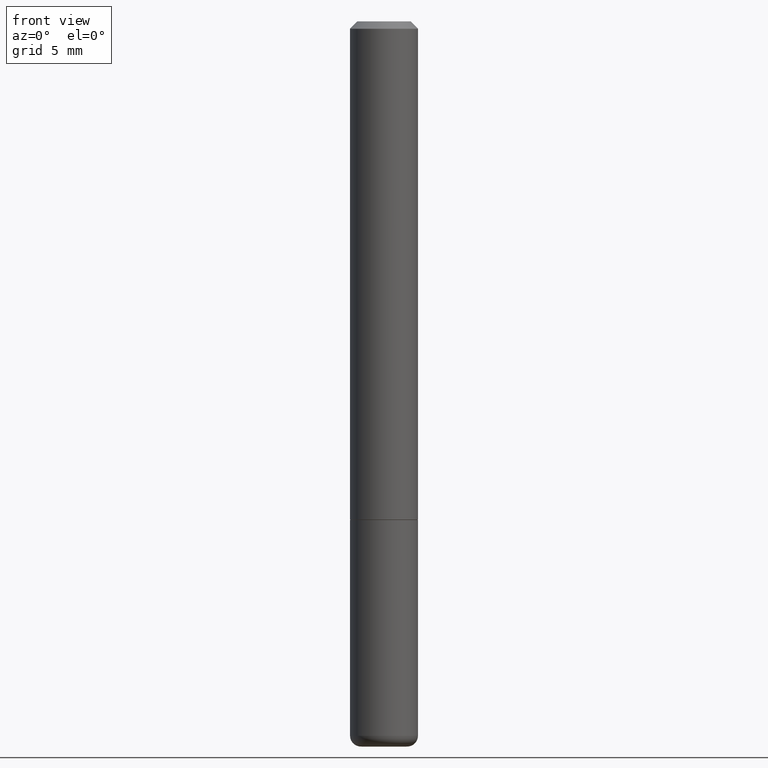
[diagram: clean part render]
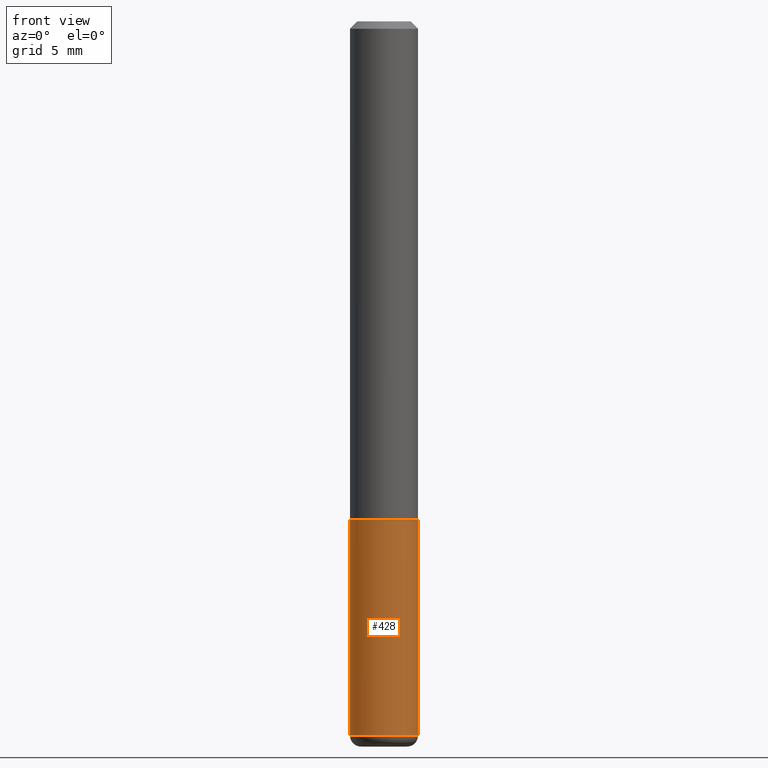
[diagram: same view with one face highlighted and labeled with its STEP entity id]
A machine part, front view. The second image highlights one B-rep face of the part: STEP entity #428.
In plain terms, the highlighted cylindrical surface (edge-blend (fillet) strip) has radius 2.3812 mm, axis along (-0, 0, 1).
Its self-contained STEP definition (entity closure, byte-faithful):
#6 = CARTESIAN_POINT ( 'NONE',  ( 0.09375000000000001388, -5.455439591942412434E-15, -1.375000000000000000 ) ) ;
#10 = VERTEX_POINT ( 'NONE', #58 ) ;
#22 = CARTESIAN_POINT ( 'NONE',  ( -0.09374999999999991673, 6.661338147750933326E-16, -4.611501647113969791E-30 ) ) ;
#27 = ORIENTED_EDGE ( 'NONE', *, *, #48, .F. ) ;
#31 = CARTESIAN_POINT ( 'NONE',  ( -0.09375000000000001388, -5.173440498747517472E-15, -1.375000000000000000 ) ) ;
#48 = EDGE_CURVE ( 'NONE', #96, #250, #372, .T. ) ;
#58 = CARTESIAN_POINT ( 'NONE',  ( -0.09374999999999984734, -5.173440498747517472E-15, -1.970041113957363033 ) ) ;
#62 = EDGE_CURVE ( 'NONE', #10, #96, #339, .T. ) ;
#77 = FACE_OUTER_BOUND ( 'NONE', #162, .T. ) ;
#78 = DIRECTION ( 'NONE',  ( -2.445468806185136877E-29, 3.491481338843145188E-15, 1.000000000000000000 ) ) ;
#81 = DIRECTION ( 'NONE',  ( 1.000000000000000000, -6.982962677686264344E-15, 0.000000000000000000 ) ) ;
#96 = VERTEX_POINT ( 'NONE', #31 ) ;
#115 = CARTESIAN_POINT ( 'NONE',  ( 0.09374999999999991673, -6.546527510330869125E-16, 4.571415727308685602E-30 ) ) ;
#118 = CIRCLE ( 'NONE', #233, 0.09374999999999984734 ) ;
#134 = AXIS2_PLACEMENT_3D ( 'NONE', #161, #195, #221 ) ;
#161 = CARTESIAN_POINT ( 'NONE',  ( 0.000000000000000000, 0.000000000000000000, 0.000000000000000000 ) ) ;
#162 = EDGE_LOOP ( 'NONE', ( #337, #248, #267, #27 ) ) ;
#174 = DIRECTION ( 'NONE',  ( -2.445468806185136877E-29, 3.491481338843145188E-15, 1.000000000000000000 ) ) ;
#180 = DIRECTION ( 'NONE',  ( -2.445468806185136597E-29, 3.491481338843145583E-15, 1.000000000000000000 ) ) ;
#185 = AXIS2_PLACEMENT_3D ( 'NONE', #436, #213, #207 ) ;
#195 = DIRECTION ( 'NONE',  ( -2.445468806185136597E-29, 3.491481338843145583E-15, 1.000000000000000000 ) ) ;
#207 = DIRECTION ( 'NONE',  ( 1.000000000000000000, -6.982962677686261189E-15, 0.000000000000000000 ) ) ;
#213 = DIRECTION ( 'NONE',  ( -2.445468806185136597E-29, 3.491481338843145583E-15, 1.000000000000000000 ) ) ;
#221 = DIRECTION ( 'NONE',  ( 1.000000000000000000, -6.982962677686266711E-15, 4.876176775795935793E-29 ) ) ;
#233 = AXIS2_PLACEMENT_3D ( 'NONE', #348, #180, #81 ) ;
#248 = ORIENTED_EDGE ( 'NONE', *, *, #429, .T. ) ;
#250 = VERTEX_POINT ( 'NONE', #6 ) ;
#263 = EDGE_CURVE ( 'NONE', #328, #250, #296, .T. ) ;
#267 = ORIENTED_EDGE ( 'NONE', *, *, #263, .T. ) ;
#270 = CARTESIAN_POINT ( 'NONE',  ( 0.09374999999999984734, -7.533014537168982211E-15, -1.970041113957363033 ) ) ;
#296 = LINE ( 'NONE', #115, #344 ) ;
#328 = VERTEX_POINT ( 'NONE', #270 ) ;
#337 = ORIENTED_EDGE ( 'NONE', *, *, #62, .F. ) ;
#339 = LINE ( 'NONE', #22, #352 ) ;
#344 = VECTOR ( 'NONE', #78, 39.37007874015748143 ) ;
#348 = CARTESIAN_POINT ( 'NONE',  ( 4.817674091084949095E-29, -6.878361786135895495E-15, -1.970041113957363033 ) ) ;
#352 = VECTOR ( 'NONE', #174, 39.37007874015748143 ) ;
#372 = CIRCLE ( 'NONE', #185, 0.09375000000000001388 ) ;
#386 = CYLINDRICAL_SURFACE ( 'NONE', #134, 0.09374999999999991673 ) ;
#428 = ADVANCED_FACE ( 'NONE', ( #77 ), #386, .T. ) ;
#429 = EDGE_CURVE ( 'NONE', #10, #328, #118, .T. ) ;
#436 = CARTESIAN_POINT ( 'NONE',  ( 3.362519608504562260E-29, -4.800786840909324930E-15, -1.375000000000000000 ) ) ;